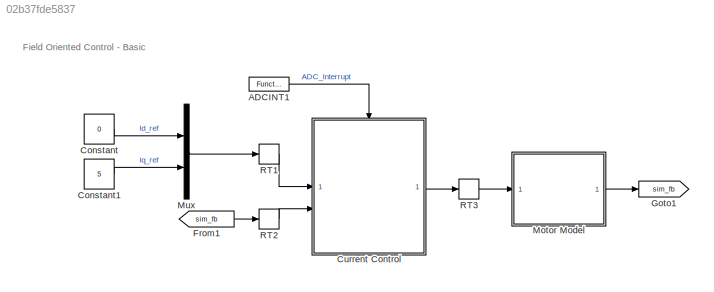
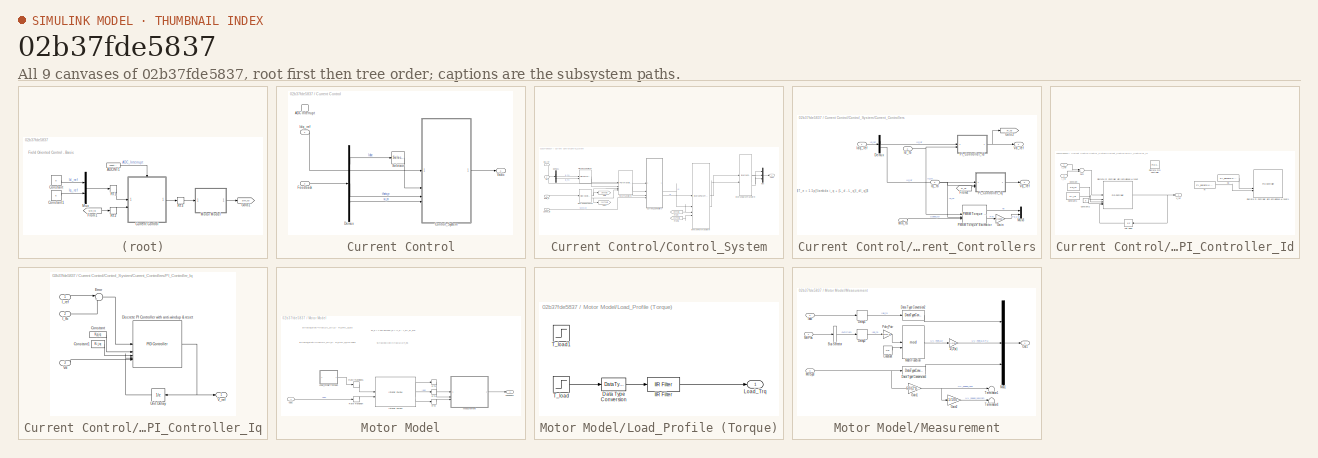
[diagram: thumbnail index - all 9 canvases of the model, root first then tree order]
MODEL mdl_02b37fde5837
KIND model
CONFIG AbsTol = auto
CONFIG EnableMultiTasking = off
CONFIG FixedStep = auto
CONFIG InitFcn = init_param;
CONFIG MaxStep = auto
CONFIG MinStep = auto
CONFIG RelTol = 1e-3
CONFIG SampleTimeConstraint = Unconstrained
CONFIG SolverName = VariableStepAuto
CONFIG StartTime = 0.0
CONFIG StopTime = 6
BLOCK [Reference] ADCINT1  REF=simulink/Ports &
Subsystems/Function-Call
Generator
  SourceBlock = simulink/Ports &\nSubsystems/Function-Call\nGenerator
  SourceType = Function-Call Generator
BLOCK [Constant] Constant
  OutDataTypeStr = single
  Value = 0
BLOCK [Constant] Constant1
  OutDataTypeStr = single
  Value = 5
BLOCK [SubSystem] Current Control
  RTWMemSecFuncExecute = code_ramfuncs
  RTWSystemCode = Nonreusable function
BLOCK [TriggerPort] Current Control/ADC Interrupt
  StatesWhenEnabling = held
  TriggerType = function-call
  VariantControl = Variant
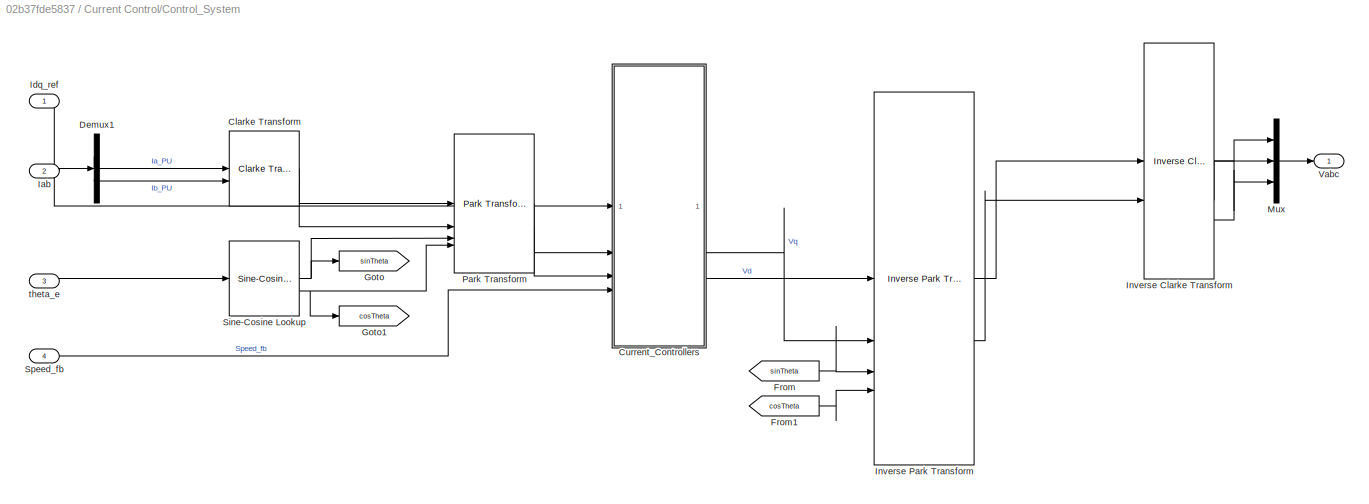
BLOCK [SubSystem] Current Control/Control_System
  RTWMemSecFuncExecute = code_ramfuncs
BLOCK [Reference] Current Control/Control_System/Clarke Transform  REF=mcbcontrolslib/Clarke Transform
  SourceBlock = mcbcontrolslib/Clarke Transform
  SourceType = Clarke Transform
BLOCK [SubSystem] Current Control/Control_System/Current_Controllers
BLOCK [Demux] Current Control/Control_System/Current_Controllers/Demux
  Outputs = 2
BLOCK [From] Current Control/Control_System/Current_Controllers/From4
  GotoTag = PI_Vd
  TagVisibility = global
BLOCK [Gain] Current Control/Control_System/Current_Controllers/Gain
  Gain = 1/1000
BLOCK [Goto] Current Control/Control_System/Current_Controllers/Goto2
  GotoTag = PI_Vd
  TagVisibility = global
BLOCK [Inport] Current Control/Control_System/Current_Controllers/Id_fb
  Port = 2
BLOCK [Inport] Current Control/Control_System/Current_Controllers/Idq_ref
BLOCK [Inport] Current Control/Control_System/Current_Controllers/Iq_fb
  Port = 3
BLOCK [Mux] Current Control/Control_System/Current_Controllers/Mux3
  DisplayOption = bar
  Inputs = 2
BLOCK [SubSystem] Current Control/Control_System/Current_Controllers/PI_Controller_Id
BLOCK [Constant] Current Control/Control_System/Current_Controllers/PI_Controller_Id/Constant
  OutDataTypeStr = single
  SampleTime = -1
  Value = Kp_id
BLOCK [Constant] Current Control/Control_System/Current_Controllers/PI_Controller_Id/Constant1
  OutDataTypeStr = single
  SampleTime = -1
  Value = Ki_id
BLOCK [Constant] Current Control/Control_System/Current_Controllers/PI_Controller_Id/Constant2
  Value = 0
BLOCK [Reference] Current Control/Control_System/Current_Controllers/PI_Controller_Id/Discrete PI Controller with anti-windup & reset  REF=slpidlib/PID Controller
  LibrarySourceBlock = mcbcontrolslib/PI Controller
  SourceBlock = slpidlib/PID Controller
  SourceType = PID 1dof
BLOCK [Reference] Current Control/Control_System/Current_Controllers/PI_Controller_Id/Discrete PI Controller with anti-windup & reset1  REF=slpidlib/PID Controller
  Commented = on
  LibrarySourceBlock = mcbcontrolslib/PI Controller
  SourceBlock = slpidlib/PID Controller
  SourceType = PID 1dof
BLOCK [Reference] Current Control/Control_System/Current_Controllers/PI_Controller_Id/Discrete PID Controller  REF=slpidlib/PID Controller
  Commented = on
  SourceBlock = slpidlib/PID Controller
  SourceType = PID 1dof
BLOCK [Inport] Current Control/Control_System/Current_Controllers/PI_Controller_Id/I_fb
  Port = 2
BLOCK [Inport] Current Control/Control_System/Current_Controllers/PI_Controller_Id/I_ref
BLOCK [Constant] Current Control/Control_System/Current_Controllers/PI_Controller_Id/Ki
  Commented = on
  OutDataTypeStr = dataType
  SampleTime = -1
  Value = PI_params.Ki_id*Ts
BLOCK [Constant] Current Control/Control_System/Current_Controllers/PI_Controller_Id/Kp
  Commented = on
  NameLocation = top
  OutDataTypeStr = dataType
  SampleTime = -1
  Value = PI_params.Kp_id
BLOCK [Sum] Current Control/Control_System/Current_Controllers/PI_Controller_Id/Sum
  AccumDataTypeStr = Inherit: Same as first input
  Inputs = |+-
  OutDataTypeStr = Inherit: Same as first input
BLOCK [UnitDelay] Current Control/Control_System/Current_Controllers/PI_Controller_Id/Unit Delay
  HasFrameUpgradeWarning = on
  NameLocation = top
  SampleTime = -1
BLOCK [Outport] Current Control/Control_System/Current_Controllers/PI_Controller_Id/V_ref
  VectorParamsAs1DForOutWhenUnconnected = off
BLOCK [SubSystem] Current Control/Control_System/Current_Controllers/PI_Controller_Iq
BLOCK [Constant] Current Control/Control_System/Current_Controllers/PI_Controller_Iq/Constant
  OutDataTypeStr = single
  SampleTime = -1
  Value = Kp_iq
BLOCK [Constant] Current Control/Control_System/Current_Controllers/PI_Controller_Iq/Constant1
  OutDataTypeStr = single
  SampleTime = -1
  Value = Ki_iq
BLOCK [Reference] Current Control/Control_System/Current_Controllers/PI_Controller_Iq/Discrete PI Controller with anti-windup & reset  REF=slpidlib/PID Controller
  LibrarySourceBlock = mcbcontrolslib/PI Controller
  SourceBlock = slpidlib/PID Controller
  SourceType = PID 1dof
BLOCK [Sum] Current Control/Control_System/Current_Controllers/PI_Controller_Iq/Error
  AccumDataTypeStr = Inherit: Same as first input
  Inputs = |+-
  NameLocation = top
  OutDataTypeStr = Inherit: Same as first input
BLOCK [Inport] Current Control/Control_System/Current_Controllers/PI_Controller_Iq/I_fb
  Port = 2
BLOCK [Inport] Current Control/Control_System/Current_Controllers/PI_Controller_Iq/I_ref
BLOCK [UnitDelay] Current Control/Control_System/Current_Controllers/PI_Controller_Iq/Unit Delay
  HasFrameUpgradeWarning = on
  NameLocation = top
  SampleTime = -1
BLOCK [Outport] Current Control/Control_System/Current_Controllers/PI_Controller_Iq/V_ref
  VectorParamsAs1DForOutWhenUnconnected = off
BLOCK [Inport] Current Control/Control_System/Current_Controllers/PI_Controller_Iq/Vd
  NameLocation = top
  Port = 3
BLOCK [Reference] Current Control/Control_System/Current_Controllers/PMSM Torque Estimator  REF=mcbpmsmnonlinearlib/PMSM Torque Estimator
  SourceBlock = mcbpmsmnonlinearlib/PMSM Torque Estimator
  SourceType = PMSM Torque Estimator
BLOCK [Outport] Current Control/Control_System/Current_Controllers/Vd_ref
  NameLocation = top
  VectorParamsAs1DForOutWhenUnconnected = off
BLOCK [Outport] Current Control/Control_System/Current_Controllers/Vq_ref
  Port = 2
  VectorParamsAs1DForOutWhenUnconnected = off
BLOCK [Inport] Current Control/Control_System/Current_Controllers/Wm_fb
  Port = 4
BLOCK [Demux] Current Control/Control_System/Demux1
  Outputs = 2
BLOCK [From] Current Control/Control_System/From
  GotoTag = sinTheta
BLOCK [From] Current Control/Control_System/From1
  GotoTag = cosTheta
BLOCK [Goto] Current Control/Control_System/Goto
  GotoTag = sinTheta
BLOCK [Goto] Current Control/Control_System/Goto1
  GotoTag = cosTheta
BLOCK [Inport] Current Control/Control_System/Iab
  NameLocation = top
  Port = 2
BLOCK [Inport] Current Control/Control_System/Idq_ref
  NameLocation = top
BLOCK [Reference] Current Control/Control_System/Inverse Clarke Transform  REF=mcbcontrolslib/Inverse Clarke Transform
  NameLocation = top
  SourceBlock = mcbcontrolslib/Inverse Clarke Transform
  SourceType = Inverse Clarke Transform
BLOCK [Reference] Current Control/Control_System/Inverse Park Transform  REF=mcbcontrolslib/Inverse Park Transform
  SourceBlock = mcbcontrolslib/Inverse Park Transform
  SourceType = Inverse Park Transform
BLOCK [Mux] Current Control/Control_System/Mux
  DisplayOption = bar
  Inputs = 3
BLOCK [Reference] Current Control/Control_System/Park Transform  REF=mcbcontrolslib/Park Transform
  SourceBlock = mcbcontrolslib/Park Transform
  SourceType = Park Transform
BLOCK [Reference] Current Control/Control_System/Sine-Cosine Lookup  REF=mcbcontrolslib/Sine-Cosine Lookup
  SourceBlock = mcbcontrolslib/Sine-Cosine Lookup
  SourceType = Sine-Cosine Lookup
BLOCK [Inport] Current Control/Control_System/Speed_fb
  Port = 4
BLOCK [Outport] Current Control/Control_System/Vabc
BLOCK [Inport] Current Control/Control_System/theta_e
  Port = 3
BLOCK [Demux] Current Control/Demux
  DisplayOption = none
  Outputs = 3
BLOCK [Inport] Current Control/Feedback
  Port = 2
BLOCK [Inport] Current Control/Idq_ref
BLOCK [Selector] Current Control/Selector
  IndexOptions = Index vector (dialog)
  Indices = [1 2]
  InputPortWidth = 3
  OutputSizes = 1
BLOCK [Outport] Current Control/Vabc
  InitialOutput = 0
  VectorParamsAs1DForOutWhenUnconnected = off
BLOCK [From] From1
  GotoTag = sim_fb
BLOCK [Goto] Goto1
  GotoTag = sim_fb
BLOCK [SubSystem] Motor Model
  RTWSystemCode = Reusable function
BLOCK [Outport] Motor Model/Feedback
  VectorParamsAs1DForOutWhenUnconnected = off
BLOCK [Reference] Motor Model/Interior PMSM  REF=autolibpmsminterior/Interior PMSM
  SourceBlock = autolibpmsminterior/Interior PMSM
  SourceType = Interior PMSM
BLOCK [SubSystem] Motor Model/Load_Profile (Torque)
BLOCK [DataTypeConversion] Motor Model/Load_Profile (Torque)/Data Type Conversion
  OutDataTypeStr = single
  RndMeth = Floor
  SaturateOnIntegerOverflow = off
BLOCK [Reference] Motor Model/Load_Profile (Torque)/IIR Filter  REF=mcbcontrolslib/IIR Filter
  SourceBlock = mcbcontrolslib/IIR Filter
  SourceType = IIR Filter
BLOCK [Outport] Motor Model/Load_Profile (Torque)/Load_Trq
  VectorParamsAs1DForOutWhenUnconnected = off
BLOCK [Step] Motor Model/Load_Profile (Torque)/T_load
  After = 0*pmsm.T_rated
  Before = 0*pmsm.T_rated
  SampleTime = Ts_simulink
  Time = 5.5
BLOCK [Step] Motor Model/Load_Profile (Torque)/T_load1
  After = -0.05*pmsm.T_rated
  Before = 0.05*pmsm.T_rated
  SampleTime = Ts_simulink
  Time = 2
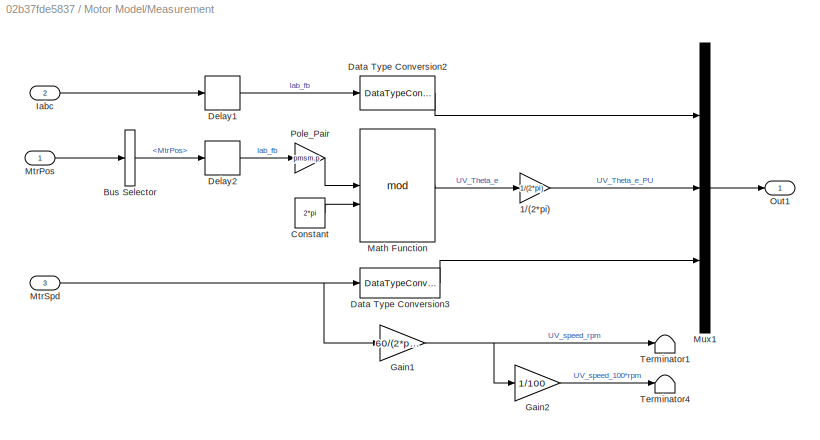
BLOCK [SubSystem] Motor Model/Measurement
BLOCK [Gain] Motor Model/Measurement/1//(2*pi)
  Gain = 1/(2*pi)
  OutDataTypeStr = dataType
BLOCK [BusSelector] Motor Model/Measurement/Bus Selector
  OutputSignals = MtrPos
BLOCK [Constant] Motor Model/Measurement/Constant
  SampleTime = -1
  Value = 2*pi
BLOCK [DataTypeConversion] Motor Model/Measurement/Data Type Conversion2
  OutDataTypeStr = single
  RndMeth = Floor
  SaturateOnIntegerOverflow = off
BLOCK [DataTypeConversion] Motor Model/Measurement/Data Type Conversion3
  OutDataTypeStr = single
  RndMeth = Floor
  SaturateOnIntegerOverflow = off
BLOCK [Delay] Motor Model/Measurement/Delay1
  DelayLength = 1
  InputPortMap = u0
BLOCK [Delay] Motor Model/Measurement/Delay2
  DelayLength = 1
  InputPortMap = u0
BLOCK [Gain] Motor Model/Measurement/Gain1
  Gain = 60/(2*pi)
  OutDataTypeStr = dataType
BLOCK [Gain] Motor Model/Measurement/Gain2
  Gain = 1/100
  OutDataTypeStr = dataType
BLOCK [Inport] Motor Model/Measurement/Iabc
  Port = 2
BLOCK [Math] Motor Model/Measurement/Math Function
  Operator = mod
BLOCK [Inport] Motor Model/Measurement/MtrPos
BLOCK [Inport] Motor Model/Measurement/MtrSpd
  Port = 3
BLOCK [Mux] Motor Model/Measurement/Mux1
  DisplayOption = bar
  Inputs = 3
BLOCK [Outport] Motor Model/Measurement/Out1
BLOCK [Gain] Motor Model/Measurement/Pole_Pair
  Gain = pmsm.p
BLOCK [Terminator] Motor Model/Measurement/Terminator1
BLOCK [Terminator] Motor Model/Measurement/Terminator4
BLOCK [RateTransition] Motor Model/RT1
  Deterministic = off
  OutPortSampleTime = Ts_simulink
BLOCK [RateTransition] Motor Model/RT2
  Deterministic = off
  OutPortSampleTime = Ts_simulink
BLOCK [RateTransition] Motor Model/RT3
  Deterministic = off
  OutPortSampleTime = Ts_simulink
BLOCK [RateTransition] Motor Model/Rate Transition
  Deterministic = off
  OutPortSampleTime = Ts_motor
BLOCK [RateTransition] Motor Model/Rate Transition1
  Deterministic = off
  OutPortSampleTime = Ts_motor
BLOCK [Inport] Motor Model/Vabc
BLOCK [Mux] Mux
  DisplayOption = bar
  Inputs = 2
BLOCK [RateTransition] RT1
  Deterministic = off
BLOCK [RateTransition] RT2
  Deterministic = off
BLOCK [RateTransition] RT3
  Deterministic = off
ANNOTATION (root): Field Oriented Control - Basic
ANNOTATION Current Control/Control_System/Current_Controllers: $T_e = 1.5p[\lambda i_q + (L_d - L_q)I_dI_q]$
ANNOTATION Motor Model: $T_e = 1.5p[\lambda i_q + (L_d - L_q)I_dI_q]$
ANNOTATION Motor Model: $\frac{di_d}{dt}=\frac{1}{L_s}[V_d - Ri_d+wL_si_q]$
ANNOTATION Motor Model: $\frac{di_q}{dt}=\frac{1}{L_s}[V_q - Ri_q-wL_si_d-w\psi]$
ANNOTATION Motor Model: $\frac{dw}{dt}=\frac{1}{J}T_e$
LINE ADCINT1:1 -> Current Control:trigger
LINE Constant1:1 -> Mux:2
LINE Constant:1 -> Mux:1
LINE Current Control/Control_System/Clarke Transform:1 -> Current Control/Control_System/Park Transform:1
LINE Current Control/Control_System/Clarke Transform:2 -> Current Control/Control_System/Park Transform:2
LINE Current Control/Control_System/Current_Controllers/Demux:1 -> Current Control/Control_System/Current_Controllers/PI_Controller_Id:1
LINE Current Control/Control_System/Current_Controllers/Demux:2 -> Current Control/Control_System/Current_Controllers/PI_Controller_Iq:1
LINE Current Control/Control_System/Current_Controllers/From4:1 -> Current Control/Control_System/Current_Controllers/PI_Controller_Iq:3
LINE Current Control/Control_System/Current_Controllers/Gain:1 -> Current Control/Control_System/Current_Controllers/Mux3:2
NET Current Control/Control_System/Current_Controllers/Id_fb:1 -> Current Control/Control_System/Current_Controllers/PI_Controller_Id:2, Current Control/Control_System/Current_Controllers/PMSM Torque Estimator:1
LINE Current Control/Control_System/Current_Controllers/Idq_ref:1 -> Current Control/Control_System/Current_Controllers/Demux:1
NET Current Control/Control_System/Current_Controllers/Iq_fb:1 -> Current Control/Control_System/Current_Controllers/PI_Controller_Iq:2, Current Control/Control_System/Current_Controllers/PMSM Torque Estimator:2
LINE Current Control/Control_System/Current_Controllers/PI_Controller_Id/Constant1:1 -> Current Control/Control_System/Current_Controllers/PI_Controller_Id/Discrete PI Controller with anti-windup & reset:3
LINE Current Control/Control_System/Current_Controllers/PI_Controller_Id/Constant2:1 -> Current Control/Control_System/Current_Controllers/PI_Controller_Id/Discrete PI Controller with anti-windup & reset:4
LINE Current Control/Control_System/Current_Controllers/PI_Controller_Id/Constant:1 -> Current Control/Control_System/Current_Controllers/PI_Controller_Id/Discrete PI Controller with anti-windup & reset:2
NET Current Control/Control_System/Current_Controllers/PI_Controller_Id/Discrete PI Controller with anti-windup & reset:1 -> Current Control/Control_System/Current_Controllers/PI_Controller_Id/Unit Delay:1, Current Control/Control_System/Current_Controllers/PI_Controller_Id/V_ref:1
LINE Current Control/Control_System/Current_Controllers/PI_Controller_Id/I_fb:1 -> Current Control/Control_System/Current_Controllers/PI_Controller_Id/Sum:2
LINE Current Control/Control_System/Current_Controllers/PI_Controller_Id/I_ref:1 -> Current Control/Control_System/Current_Controllers/PI_Controller_Id/Sum:1
LINE Current Control/Control_System/Current_Controllers/PI_Controller_Id/Ki:1 -> Current Control/Control_System/Current_Controllers/PI_Controller_Id/Discrete PI Controller with anti-windup & reset1:3
LINE Current Control/Control_System/Current_Controllers/PI_Controller_Id/Kp:1 -> Current Control/Control_System/Current_Controllers/PI_Controller_Id/Discrete PI Controller with anti-windup & reset1:2
LINE Current Control/Control_System/Current_Controllers/PI_Controller_Id/Sum:1 -> Current Control/Control_System/Current_Controllers/PI_Controller_Id/Discrete PI Controller with anti-windup & reset:1
LINE Current Control/Control_System/Current_Controllers/PI_Controller_Id/Unit Delay:1 -> Current Control/Control_System/Current_Controllers/PI_Controller_Id/Discrete PI Controller with anti-windup & reset:5
NET Current Control/Control_System/Current_Controllers/PI_Controller_Id:1 -> Current Control/Control_System/Current_Controllers/Goto2:1, Current Control/Control_System/Current_Controllers/Vd_ref:1
LINE Current Control/Control_System/Current_Controllers/PI_Controller_Iq/Constant1:1 -> Current Control/Control_System/Current_Controllers/PI_Controller_Iq/Discrete PI Controller with anti-windup & reset:3
LINE Current Control/Control_System/Current_Controllers/PI_Controller_Iq/Constant:1 -> Current Control/Control_System/Current_Controllers/PI_Controller_Iq/Discrete PI Controller with anti-windup & reset:2
NET Current Control/Control_System/Current_Controllers/PI_Controller_Iq/Discrete PI Controller with anti-windup & reset:1 -> Current Control/Control_System/Current_Controllers/PI_Controller_Iq/Unit Delay:1, Current Control/Control_System/Current_Controllers/PI_Controller_Iq/V_ref:1
LINE Current Control/Control_System/Current_Controllers/PI_Controller_Iq/Error:1 -> Current Control/Control_System/Current_Controllers/PI_Controller_Iq/Discrete PI Controller with anti-windup & reset:1
LINE Current Control/Control_System/Current_Controllers/PI_Controller_Iq/I_fb:1 -> Current Control/Control_System/Current_Controllers/PI_Controller_Iq/Error:2
LINE Current Control/Control_System/Current_Controllers/PI_Controller_Iq/I_ref:1 -> Current Control/Control_System/Current_Controllers/PI_Controller_Iq/Error:1
LINE Current Control/Control_System/Current_Controllers/PI_Controller_Iq/Unit Delay:1 -> Current Control/Control_System/Current_Controllers/PI_Controller_Iq/Discrete PI Controller with anti-windup & reset:4
LINE Current Control/Control_System/Current_Controllers/PI_Controller_Iq/Vd:1 -> Current Control/Control_System/Current_Controllers/PI_Controller_Iq/Discrete PI Controller with anti-windup & reset:5
LINE Current Control/Control_System/Current_Controllers/PI_Controller_Iq:1 -> Current Control/Control_System/Current_Controllers/Vq_ref:1
LINE Current Control/Control_System/Current_Controllers/PMSM Torque Estimator:1 -> Current Control/Control_System/Current_Controllers/Mux3:1
LINE Current Control/Control_System/Current_Controllers/PMSM Torque Estimator:2 -> Current Control/Control_System/Current_Controllers/Gain:1
LINE Current Control/Control_System/Current_Controllers/Wm_fb:1 -> Current Control/Control_System/Current_Controllers/PMSM Torque Estimator:3
LINE Current Control/Control_System/Current_Controllers:1 -> Current Control/Control_System/Inverse Park Transform:1
LINE Current Control/Control_System/Current_Controllers:2 -> Current Control/Control_System/Inverse Park Transform:2
LINE Current Control/Control_System/Demux1:1 -> Current Control/Control_System/Clarke Transform:1
LINE Current Control/Control_System/Demux1:2 -> Current Control/Control_System/Clarke Transform:2
LINE Current Control/Control_System/From1:1 -> Current Control/Control_System/Inverse Park Transform:4
LINE Current Control/Control_System/From:1 -> Current Control/Control_System/Inverse Park Transform:3
LINE Current Control/Control_System/Iab:1 -> Current Control/Control_System/Demux1:1
LINE Current Control/Control_System/Idq_ref:1 -> Current Control/Control_System/Current_Controllers:1
LINE Current Control/Control_System/Inverse Clarke Transform:1 -> Current Control/Control_System/Mux:1
LINE Current Control/Control_System/Inverse Clarke Transform:2 -> Current Control/Control_System/Mux:2
LINE Current Control/Control_System/Inverse Clarke Transform:3 -> Current Control/Control_System/Mux:3
LINE Current Control/Control_System/Inverse Park Transform:1 -> Current Control/Control_System/Inverse Clarke Transform:1
LINE Current Control/Control_System/Inverse Park Transform:2 -> Current Control/Control_System/Inverse Clarke Transform:2
LINE Current Control/Control_System/Mux:1 -> Current Control/Control_System/Vabc:1
LINE Current Control/Control_System/Park Transform:1 -> Current Control/Control_System/Current_Controllers:2
LINE Current Control/Control_System/Park Transform:2 -> Current Control/Control_System/Current_Controllers:3
NET Current Control/Control_System/Sine-Cosine Lookup:1 -> Current Control/Control_System/Goto:1, Current Control/Control_System/Park Transform:3
NET Current Control/Control_System/Sine-Cosine Lookup:2 -> Current Control/Control_System/Goto1:1, Current Control/Control_System/Park Transform:4
LINE Current Control/Control_System/Speed_fb:1 -> Current Control/Control_System/Current_Controllers:4
LINE Current Control/Control_System/theta_e:1 -> Current Control/Control_System/Sine-Cosine Lookup:1
LINE Current Control/Control_System:1 -> Current Control/Vabc:1
LINE Current Control/Demux:1 -> Current Control/Selector:1
LINE Current Control/Demux:2 -> Current Control/Control_System:3
LINE Current Control/Demux:3 -> Current Control/Control_System:4
LINE Current Control/Feedback:1 -> Current Control/Demux:1
LINE Current Control/Idq_ref:1 -> Current Control/Control_System:1
LINE Current Control/Selector:1 -> Current Control/Control_System:2
LINE Current Control:1 -> RT3:1
LINE From1:1 -> RT2:1
LINE Motor Model/Interior PMSM:1 -> Motor Model/RT3:1
LINE Motor Model/Interior PMSM:2 -> Motor Model/RT1:1
LINE Motor Model/Interior PMSM:3 -> Motor Model/RT2:1
LINE Motor Model/Load_Profile (Torque)/Data Type Conversion:1 -> Motor Model/Load_Profile (Torque)/IIR Filter:1
LINE Motor Model/Load_Profile (Torque)/IIR Filter:1 -> Motor Model/Load_Profile (Torque)/Load_Trq:1
LINE Motor Model/Load_Profile (Torque)/T_load:1 -> Motor Model/Load_Profile (Torque)/Data Type Conversion:1
LINE Motor Model/Load_Profile (Torque):1 -> Motor Model/Rate Transition1:1
LINE Motor Model/Measurement/1//(2*pi):1 -> Motor Model/Measurement/Mux1:2
LINE Motor Model/Measurement/Bus Selector:1 -> Motor Model/Measurement/Delay2:1
LINE Motor Model/Measurement/Constant:1 -> Motor Model/Measurement/Math Function:2
LINE Motor Model/Measurement/Data Type Conversion2:1 -> Motor Model/Measurement/Mux1:1
LINE Motor Model/Measurement/Data Type Conversion3:1 -> Motor Model/Measurement/Mux1:3
LINE Motor Model/Measurement/Delay1:1 -> Motor Model/Measurement/Data Type Conversion2:1
LINE Motor Model/Measurement/Delay2:1 -> Motor Model/Measurement/Pole_Pair:1
NET Motor Model/Measurement/Gain1:1 -> Motor Model/Measurement/Gain2:1, Motor Model/Measurement/Terminator1:1
LINE Motor Model/Measurement/Gain2:1 -> Motor Model/Measurement/Terminator4:1
LINE Motor Model/Measurement/Iabc:1 -> Motor Model/Measurement/Delay1:1
LINE Motor Model/Measurement/Math Function:1 -> Motor Model/Measurement/1//(2*pi):1
LINE Motor Model/Measurement/MtrPos:1 -> Motor Model/Measurement/Bus Selector:1
NET Motor Model/Measurement/MtrSpd:1 -> Motor Model/Measurement/Data Type Conversion3:1, Motor Model/Measurement/Gain1:1
LINE Motor Model/Measurement/Mux1:1 -> Motor Model/Measurement/Out1:1
LINE Motor Model/Measurement/Pole_Pair:1 -> Motor Model/Measurement/Math Function:1
LINE Motor Model/Measurement:1 -> Motor Model/Feedback:1
LINE Motor Model/RT1:1 -> Motor Model/Measurement:2
LINE Motor Model/RT2:1 -> Motor Model/Measurement:3
LINE Motor Model/RT3:1 -> Motor Model/Measurement:1
LINE Motor Model/Rate Transition1:1 -> Motor Model/Interior PMSM:1
LINE Motor Model/Rate Transition:1 -> Motor Model/Interior PMSM:2
LINE Motor Model/Vabc:1 -> Motor Model/Rate Transition:1
LINE Motor Model:1 -> Goto1:1
LINE Mux:1 -> RT1:1
LINE RT1:1 -> Current Control:1
LINE RT2:1 -> Current Control:2
LINE RT3:1 -> Motor Model:1
note: NET lines group one-source signal fan-out (src -> all destinations, sorted); 1:1 wires keep LINE
